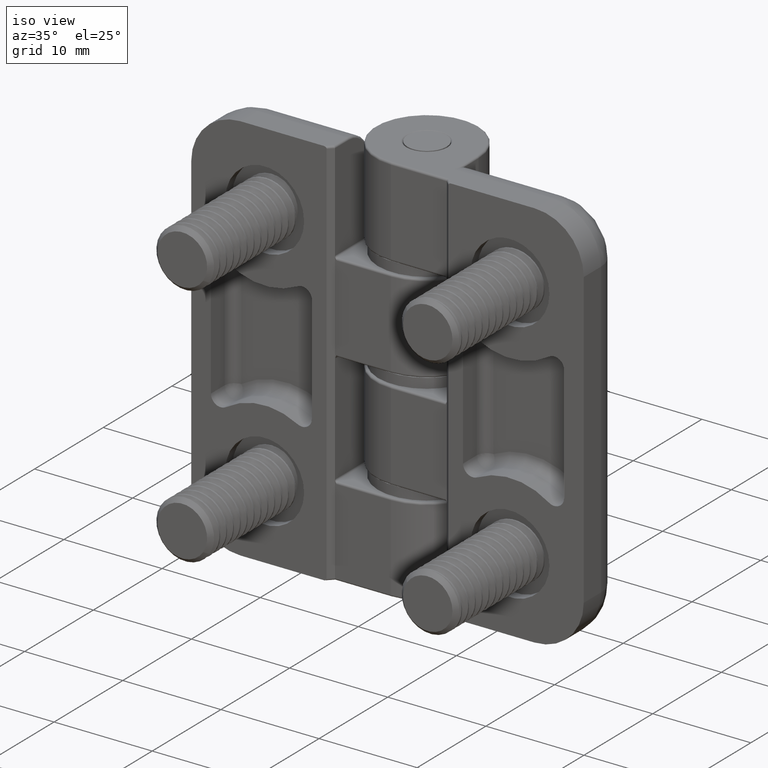
[diagram: clean part render]
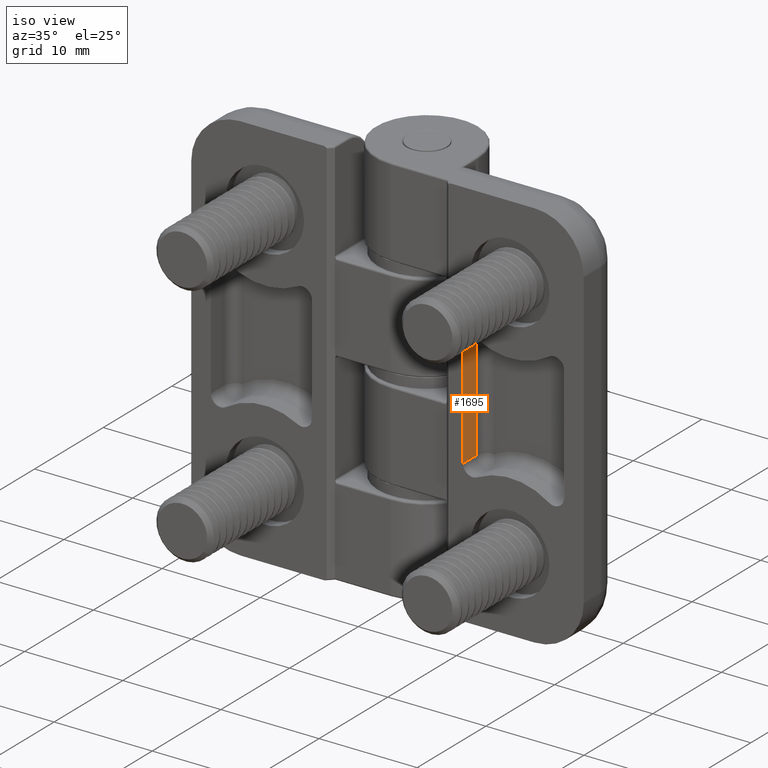
[diagram: same view with one face highlighted and labeled with its STEP entity id]
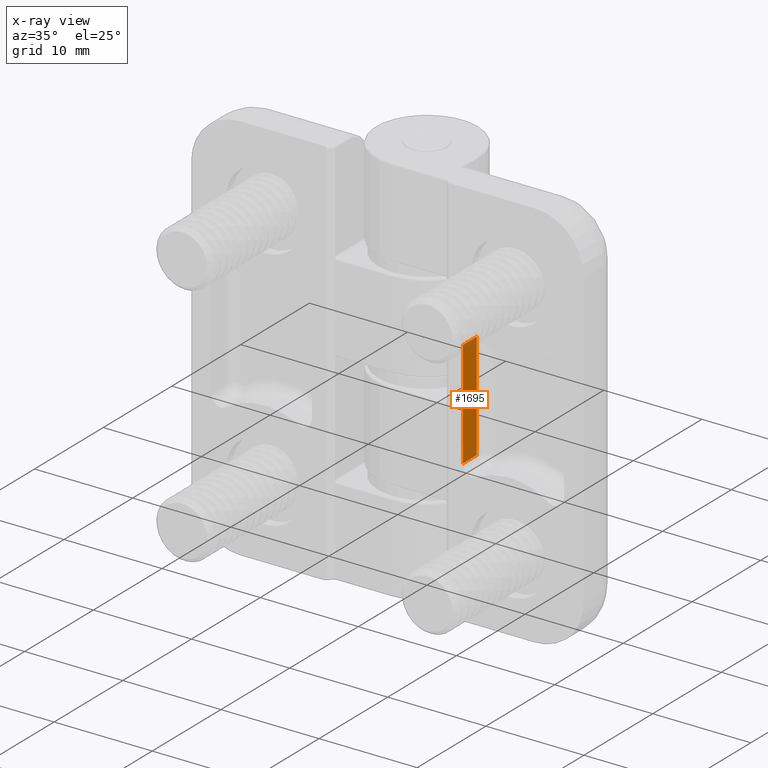
[diagram: x-ray of the same camera — body ghosted, the highlighted face saturated]
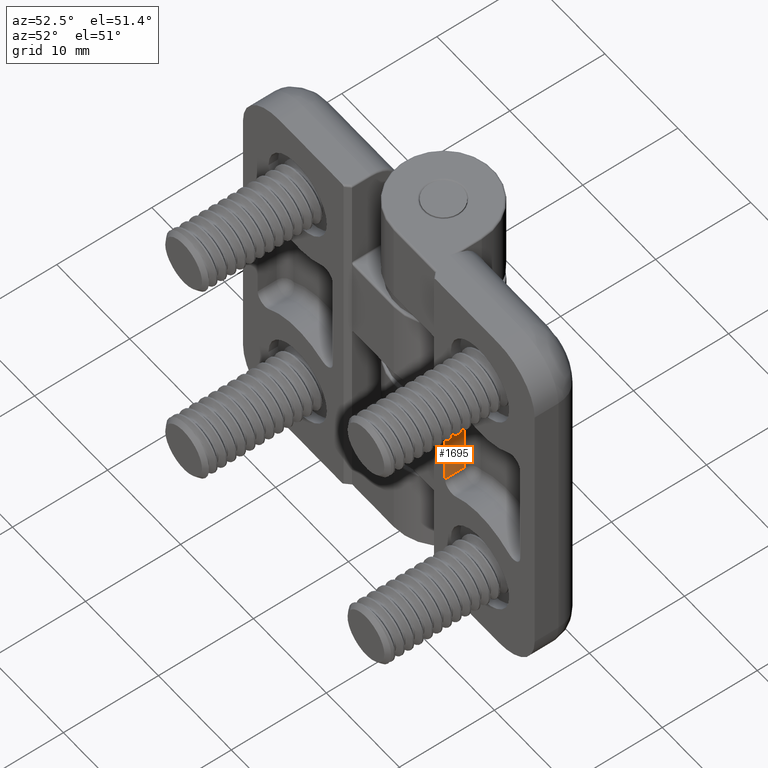
[diagram: same view with one face highlighted and labeled with its STEP entity id]
A machine part, iso view. The second image highlights one B-rep face of the part: STEP entity #1695.
The next image is the same camera in x-ray: the body ghosted, the highlighted face saturated — about 6% of this face is hidden behind the body in this view.
A second angle (auxiliary view) of the same face is appended — the face is thin or edge-on in the first view.
In plain terms, the highlighted planar face has unit normal (-1, 0, -0).
Its self-contained STEP definition (entity closure, byte-faithful):
#135=LINE('',#23046,#211);
#139=LINE('',#23070,#215);
#143=LINE('',#23096,#219);
#147=LINE('',#23105,#223);
#211=VECTOR('',#2246,10.9202272745616);
#215=VECTOR('',#2272,10.9202272745616);
#219=VECTOR('',#2310,2.);
#223=VECTOR('',#2324,2.);
#272=PLANE('',#1886);
#352=FACE_OUTER_BOUND('',#460,.T.);
#460=EDGE_LOOP('',(#1481,#1482,#1483,#1484));
#810=VERTEX_POINT('',#23043);
#811=VERTEX_POINT('',#23045);
#818=VERTEX_POINT('',#23064);
#820=VERTEX_POINT('',#23068);
#1032=EDGE_CURVE('',#810,#811,#135,.T.);
#1044=EDGE_CURVE('',#820,#818,#139,.T.);
#1058=EDGE_CURVE('',#811,#820,#143,.T.);
#1062=EDGE_CURVE('',#810,#818,#147,.T.);
#1481=ORIENTED_EDGE('',*,*,#1044,.F.);
#1482=ORIENTED_EDGE('',*,*,#1058,.F.);
#1483=ORIENTED_EDGE('',*,*,#1032,.F.);
#1484=ORIENTED_EDGE('',*,*,#1062,.T.);
#1695=ADVANCED_FACE('',(#352),#272,.F.);
#1886=AXIS2_PLACEMENT_3D('',#23104,#2322,#2323);
#2246=DIRECTION('',(-1.01666659192286E-16,-3.1572773670488E-32,1.));
#2272=DIRECTION('',(1.01666659192286E-16,2.25745331743989E-32,-1.));
#2310=DIRECTION('',(0.,1.,0.));
#2322=DIRECTION('center_axis',(-1.,0.,-1.01666659192286E-16));
#2323=DIRECTION('ref_axis',(0.,0.,1.));
#2324=DIRECTION('',(0.,1.,0.));
#23043=CARTESIAN_POINT('',(7.7,-5.75,-5.46011363728078));
#23045=CARTESIAN_POINT('',(7.7,-5.75,5.46011363728078));
#23046=CARTESIAN_POINT('',(7.7,-5.75,-2.73005681864039));
#23064=CARTESIAN_POINT('',(7.7,-3.75,-5.46011363728078));
#23068=CARTESIAN_POINT('',(7.7,-3.75,5.46011363728078));
#23070=CARTESIAN_POINT('',(7.7,-3.75,-2.73005681864039));
#23096=CARTESIAN_POINT('',(7.7,-5.75,5.46011363728078));
#23104=CARTESIAN_POINT('Origin',(7.7,-5.75,-5.46011363728078));
#23105=CARTESIAN_POINT('',(7.7,-5.75,-5.46011363728078));